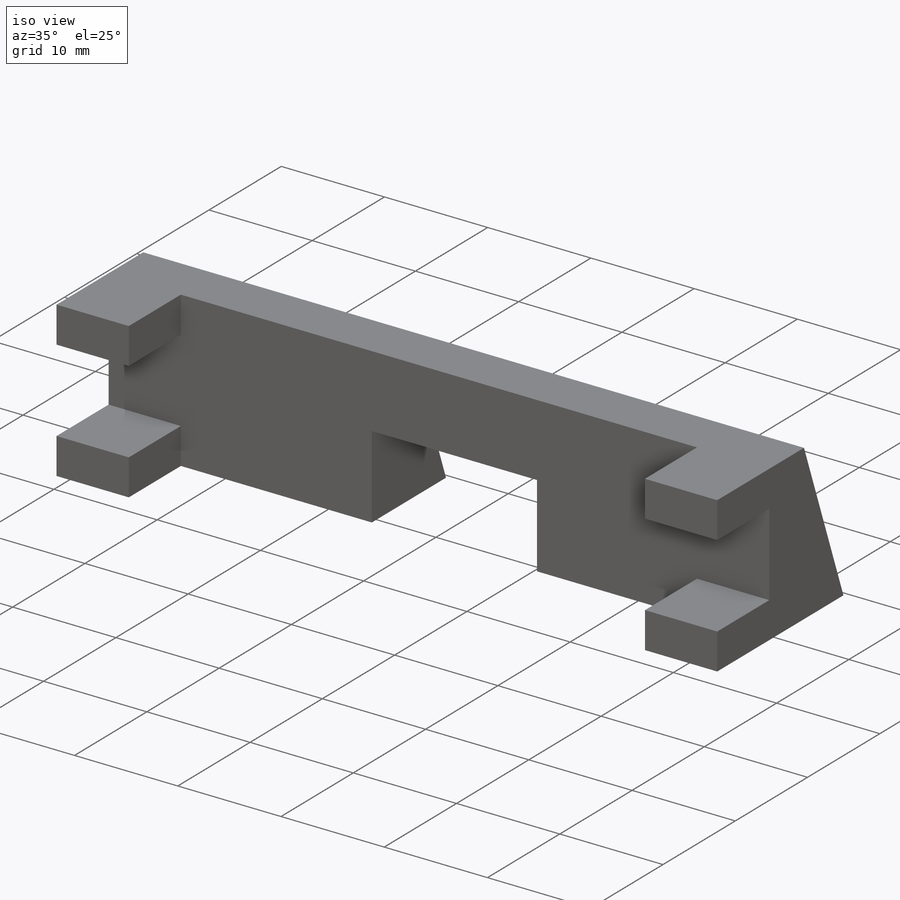
[diagram: iso view]
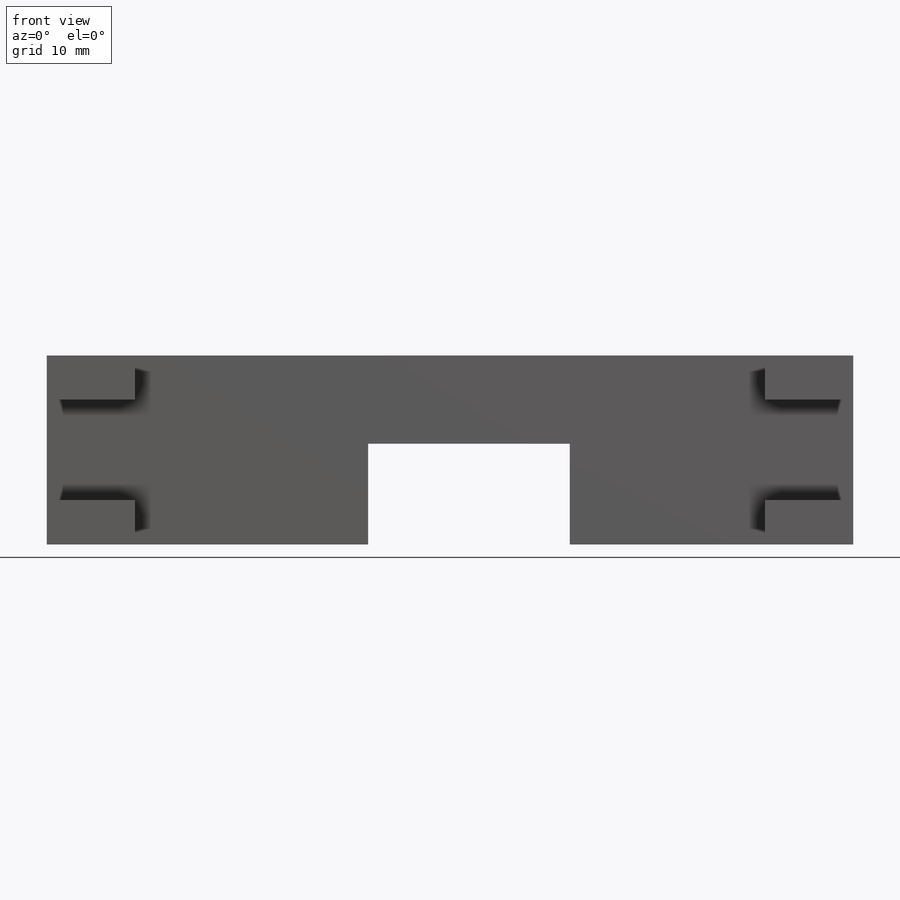
[diagram: front view]
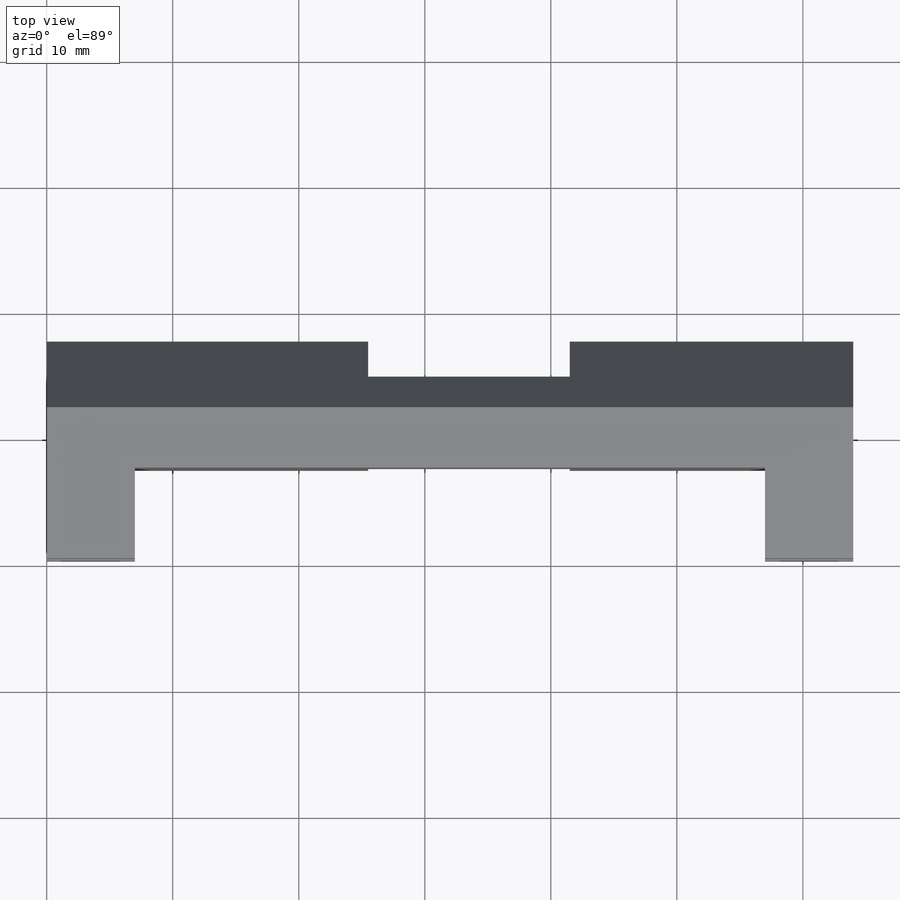
[diagram: top view]
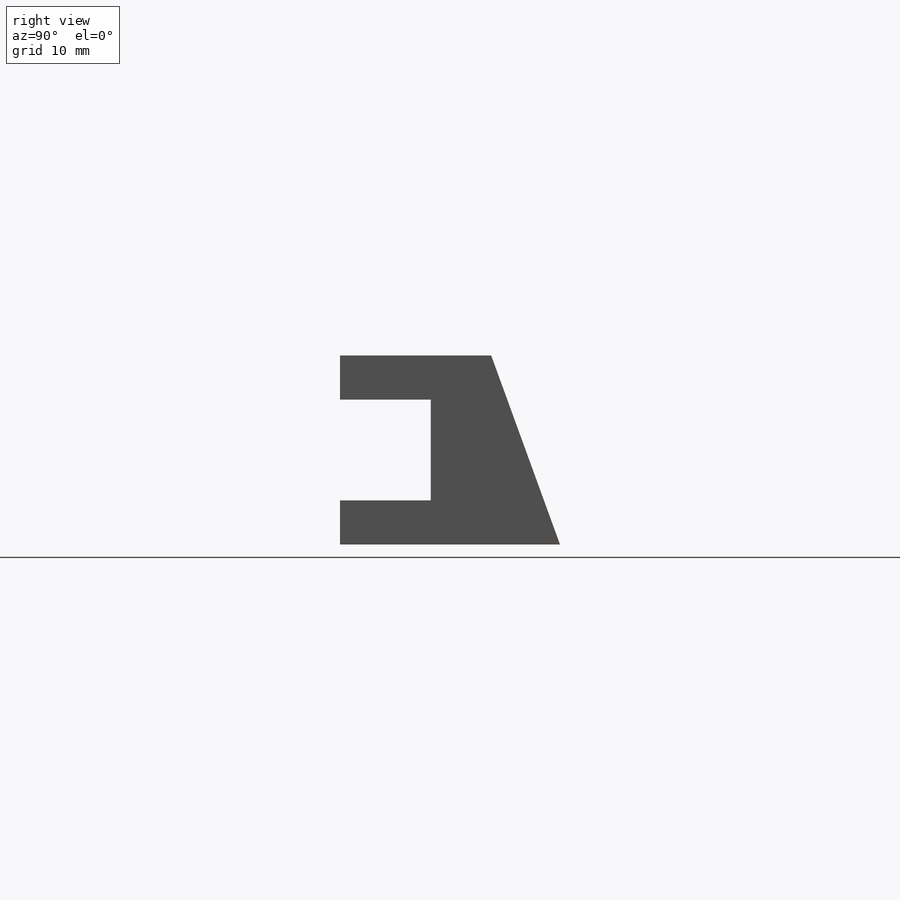
[diagram: right view]
SOLIDWORKS PART (.sldprt)
format: sldprt  version: not decoded by parser v0  size: 163,840 bytes
history: native  units: mm
features: sketch x3, cut_extrude x2, material x1, extrude x1 (+12 scaffold rows collapsed)
feature tree (19):
  scaffold x12  (default folders/planes/origin — collapsed)
  material  "Material <not specified>"
  sketch  "Sketch1"  dims[c1.D1=~30.964877mm c1.D2=~20.975037mm c2.D1=15.0mm c2.D2=~5.116415mm c2.D3=~18.511332mm c3.D2=8.0mm c3.D3=3.5mm c3.D4=7.2mm c3.D5=12.0mm c3.D6=~33.089445mm c4.D6=75.0deg c5.D6=~15.529143mm c5.D7=75.0deg c6.D6=~4.019238mm c6.D7=180.0deg c7.D6=70.0deg]
  extrude  "Boss-Extrude1"  Depth=64mm
  sketch  "Sketch2"  dims[c1.D1=7.2mm c1.D2=~39.143034mm c2.D1=50.0mm c2.D2=7.0mm]
  cut_extrude  "Cut-Extrude1"  [1 undecoded]
  sketch  "Sketch3"  dims[c1.D1=~8.64223mm c1.D2=~34.145639mm c2.D1=16.0mm c2.D2=15.5mm c2.D3=8.0mm]
  cut_extrude  "Cut-Extrude2"  Depth=64mm
decode coverage: 5 of 6 modeling features carry decoded parameters
note: ~ marks probable driven/reference dimensions
note: 1 parameter value undecoded
note: suppression state not decoded; provenance and decode notes live in map.json
